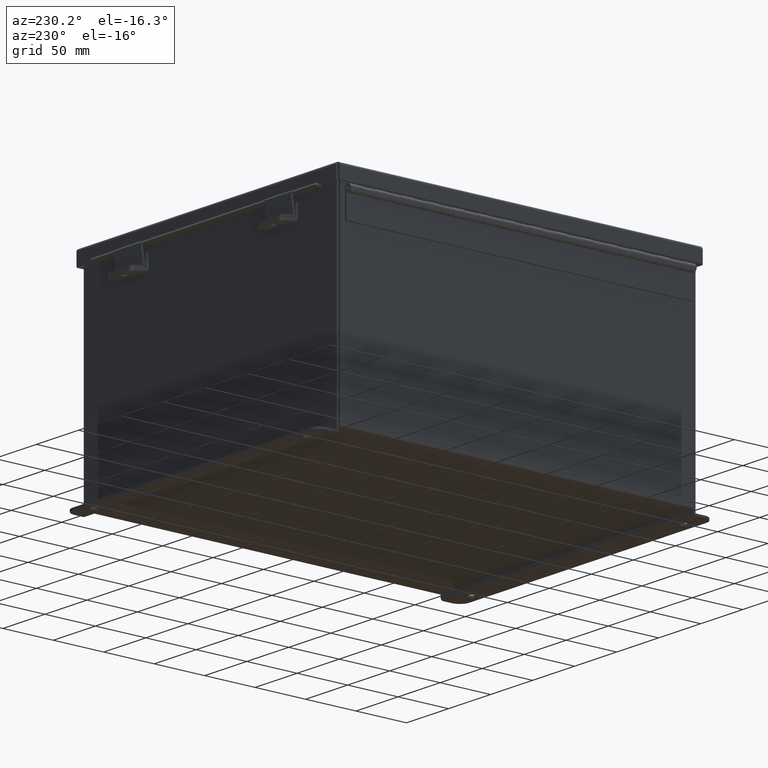
[diagram: clean part render]
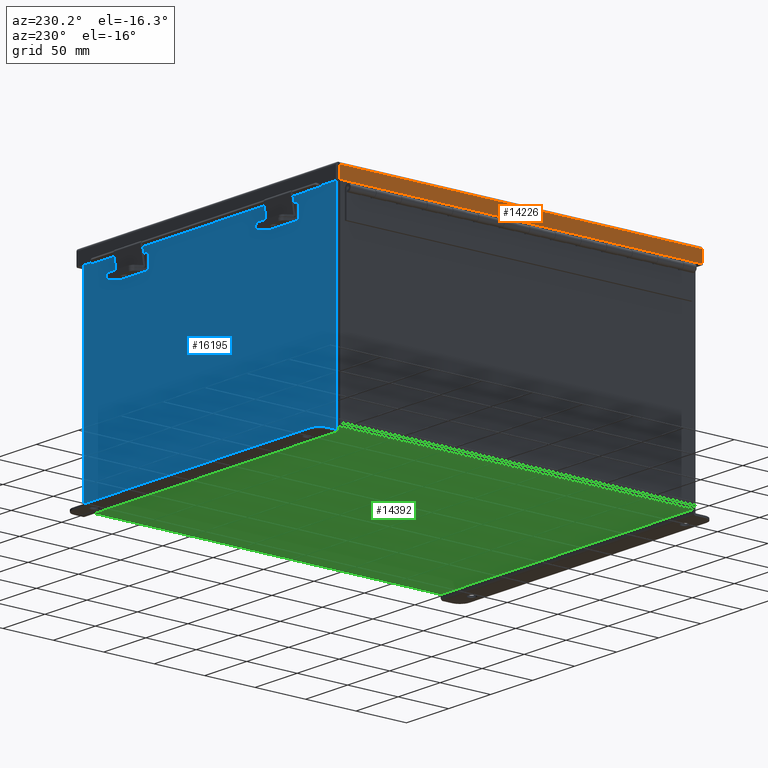
[diagram: same view with three faces highlighted in distinct colors, each labeled with its STEP entity id]
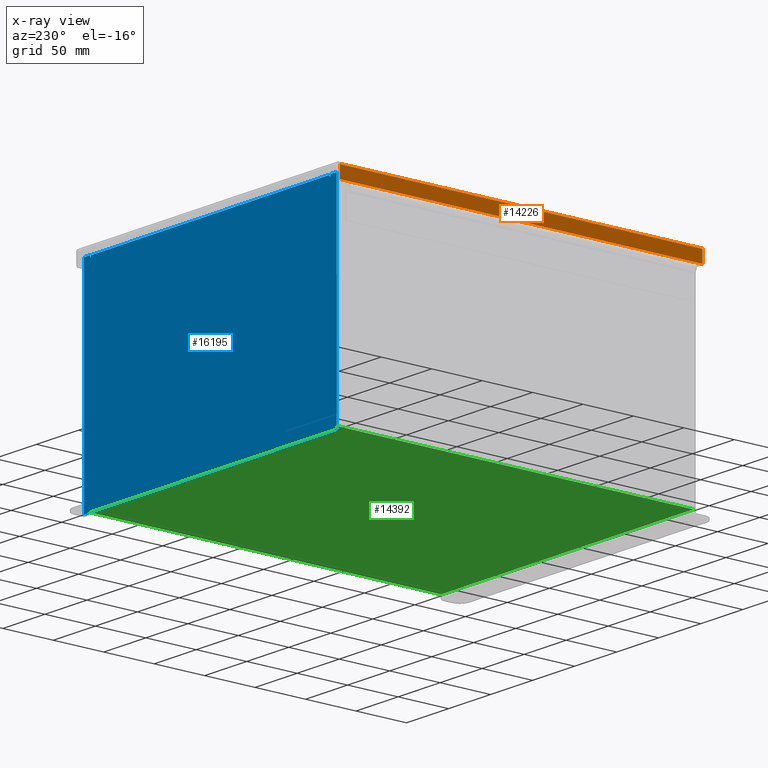
[diagram: x-ray of the same camera — body ghosted, the three highlighted faces saturated]
A machine part, auxiliary view with three faces highlighted in distinct colors.
The next image is the same camera in x-ray (body ghosted, the three faces saturated) — at least one of them is partly hidden behind the body in this view.
Their STEP definitions:

[orange] entity #14226 — the highlighted planar face has unit normal (1, -0, 0).
#831 = DIRECTION ( 'NONE',  ( -3.424136966969389700E-031, -1.000000000000000000, -7.634859021594447800E-017 ) ) ;
#2087 = CARTESIAN_POINT ( 'NONE',  ( 6.156250000000000000, 7.074478932188133800, 0.01300000000000086700 ) ) ;
#2298 = LINE ( 'NONE', #11026, #5741 ) ;
#2381 = VERTEX_POINT ( 'NONE', #10493 ) ;
#3418 = DIRECTION ( 'NONE',  ( -1.000000000000000000, 0.0000000000000000000, 4.484872552701437800E-015 ) ) ;
#3613 = ORIENTED_EDGE ( 'NONE', *, *, #9791, .T. ) ;
#3631 = EDGE_CURVE ( 'NONE', #6689, #2381, #6513, .T. ) ;
#3774 = CARTESIAN_POINT ( 'NONE',  ( 6.156250000000000000, 7.074478932188133800, -2.787081030857980700E-014 ) ) ;
#3841 = DIRECTION ( 'NONE',  ( 4.484872552701437800E-015, 0.0000000000000000000, 1.000000000000000000 ) ) ;
#4353 = CARTESIAN_POINT ( 'NONE',  ( 6.156250000000000000, -7.074478932188138300, 0.01299999999999974100 ) ) ;
#4538 = DIRECTION ( 'NONE',  ( 4.484872552701437800E-015, -0.0000000000000000000, 1.000000000000000000 ) ) ;
#5237 = CARTESIAN_POINT ( 'NONE',  ( 6.156250000000002700, -1.140647937826210200E-017, 0.4872999999999997300 ) ) ;
#5702 = VERTEX_POINT ( 'NONE', #7013 ) ;
#5741 = VECTOR ( 'NONE', #831, 39.37007874015748100 ) ;
#6513 = LINE ( 'NONE', #11922, #13709 ) ;
#6689 = VERTEX_POINT ( 'NONE', #4353 ) ;
#7013 = CARTESIAN_POINT ( 'NONE',  ( 6.156250000000002700, 7.074478932188133800, 0.4872999999999997300 ) ) ;
#7399 = VERTEX_POINT ( 'NONE', #2087 ) ;
#7754 = PLANE ( 'NONE',  #18872 ) ;
#7905 = ORIENTED_EDGE ( 'NONE', *, *, #15553, .F. ) ;
#8229 = EDGE_CURVE ( 'NONE', #7399, #5702, #12398, .T. ) ;
#8747 = ORIENTED_EDGE ( 'NONE', *, *, #8229, .T. ) ;
#9060 = ORIENTED_EDGE ( 'NONE', *, *, #3631, .F. ) ;
#9624 = VECTOR ( 'NONE', #15415, 39.37007874015748100 ) ;
#9791 = EDGE_CURVE ( 'NONE', #5702, #2381, #13492, .T. ) ;
#10493 = CARTESIAN_POINT ( 'NONE',  ( 6.156250000000002700, -7.074478932188137400, 0.4872999999999997300 ) ) ;
#11026 = CARTESIAN_POINT ( 'NONE',  ( 6.156250000000000000, -7.156250000000001800, 0.01299999999999978100 ) ) ;
#11922 = CARTESIAN_POINT ( 'NONE',  ( 6.156250000000000000, -7.074478932188137400, -3.350199796867981300E-016 ) ) ;
#12061 = CARTESIAN_POINT ( 'NONE',  ( 6.156250000000000000, -1.140647937826210200E-017, -2.787081030857980700E-014 ) ) ;
#12398 = LINE ( 'NONE', #3774, #15419 ) ;
#13492 = LINE ( 'NONE', #5237, #9624 ) ;
#13540 = DIRECTION ( 'NONE',  ( 4.484872552701437800E-015, 0.0000000000000000000, 1.000000000000000000 ) ) ;
#13709 = VECTOR ( 'NONE', #4538, 39.37007874015748100 ) ;
#14226 = ADVANCED_FACE ( 'NONE', ( #18721 ), #7754, .F. ) ;
#15415 = DIRECTION ( 'NONE',  ( 0.0000000000000000000, -1.000000000000000000, 0.0000000000000000000 ) ) ;
#15419 = VECTOR ( 'NONE', #3841, 39.37007874015748100 ) ;
#15553 = EDGE_CURVE ( 'NONE', #7399, #6689, #2298, .T. ) ;
#18721 = FACE_OUTER_BOUND ( 'NONE', #18807, .T. ) ;
#18807 = EDGE_LOOP ( 'NONE', ( #7905, #8747, #3613, #9060 ) ) ;
#18872 = AXIS2_PLACEMENT_3D ( 'NONE', #12061, #3418, #13540 ) ;

[blue] entity #16195 — the highlighted planar face has unit normal (0, -1, 0).
#46 = VERTEX_POINT ( 'NONE', #3001 ) ;
#125 = CARTESIAN_POINT ( 'NONE',  ( 5.619649999999914800, 0.0000000000000000000, -1.218404205174261500E-013 ) ) ;
#365 = ORIENTED_EDGE ( 'NONE', *, *, #11782, .F. ) ;
#561 = ORIENTED_EDGE ( 'NONE', *, *, #13495, .T. ) ;
#648 = VECTOR ( 'NONE', #2495, 39.37007874015748100 ) ;
#693 = VERTEX_POINT ( 'NONE', #11125 ) ;
#738 = CARTESIAN_POINT ( 'NONE',  ( -5.925300000000000000, -1.092739197465705300E-015, -4.099300000000000400 ) ) ;
#811 = ORIENTED_EDGE ( 'NONE', *, *, #14883, .F. ) ;
#848 = EDGE_CURVE ( 'NONE', #5216, #693, #15459, .T. ) ;
#944 = LINE ( 'NONE', #9217, #12095 ) ;
#970 = CARTESIAN_POINT ( 'NONE',  ( 5.925299999999999100, 0.0000000000000000000, 3.925299999999999600 ) ) ;
#1270 = ORIENTED_EDGE ( 'NONE', *, *, #4101, .F. ) ;
#2111 = LINE ( 'NONE', #11011, #16282 ) ;
#2129 = DIRECTION ( 'NONE',  ( 1.000000000000000000, 0.0000000000000000000, 4.610480471308225700E-017 ) ) ;
#2335 = DIRECTION ( 'NONE',  ( 0.0000000000000000000, 0.0000000000000000000, -1.000000000000000000 ) ) ;
#2495 = DIRECTION ( 'NONE',  ( 1.000000000000000000, 0.0000000000000000000, 4.610480471308225700E-017 ) ) ;
#2780 = VECTOR ( 'NONE', #17702, 39.37007874015748100 ) ;
#2926 = CARTESIAN_POINT ( 'NONE',  ( 5.619649999999998300, 0.0000000000000000000, 3.874949999999998300 ) ) ;
#3001 = CARTESIAN_POINT ( 'NONE',  ( 5.619650000000000000, 0.0000000000000000000, 3.925299999999999600 ) ) ;
#3216 = CARTESIAN_POINT ( 'NONE',  ( -5.582300000000000000, 0.0000000000000000000, 0.0000000000000000000 ) ) ;
#3630 = EDGE_LOOP ( 'NONE', ( #365, #811, #5744, #7162, #11311, #1270, #13494, #7910, #13295, #4691, #561, #10309 ) ) ;
#3639 = CARTESIAN_POINT ( 'NONE',  ( -5.600975000000000000, 0.0000000000000000000, 3.874949999999998300 ) ) ;
#3835 = VECTOR ( 'NONE', #12362, 39.37007874015748100 ) ;
#3971 = VECTOR ( 'NONE', #12495, 39.37007874015748100 ) ;
#4101 = EDGE_CURVE ( 'NONE', #17610, #8145, #10760, .T. ) ;
#4475 = EDGE_CURVE ( 'NONE', #5850, #15093, #11648, .T. ) ;
#4522 = AXIS2_PLACEMENT_3D ( 'NONE', #17060, #18550, #9719 ) ;
#4691 = ORIENTED_EDGE ( 'NONE', *, *, #4475, .F. ) ;
#4811 = CARTESIAN_POINT ( 'NONE',  ( -5.582300000000000000, 2.185478394931410600E-015, 3.912299999999998800 ) ) ;
#5028 = VERTEX_POINT ( 'NONE', #16252 ) ;
#5106 = DIRECTION ( 'NONE',  ( 0.0000000000000000000, 0.0000000000000000000, -1.000000000000000000 ) ) ;
#5216 = VERTEX_POINT ( 'NONE', #4811 ) ;
#5526 = CIRCLE ( 'NONE', #14808, 0.01867500000000003900 ) ;
#5744 = ORIENTED_EDGE ( 'NONE', *, *, #848, .F. ) ;
#5850 = VERTEX_POINT ( 'NONE', #738 ) ;
#5951 = FACE_OUTER_BOUND ( 'NONE', #3630, .T. ) ;
#6108 = CARTESIAN_POINT ( 'NONE',  ( -5.925300000000001800, 0.0000000000000000000, 3.925299999999999600 ) ) ;
#6256 = DIRECTION ( 'NONE',  ( 0.0000000000000000000, 0.0000000000000000000, 1.000000000000000000 ) ) ;
#6508 = VECTOR ( 'NONE', #2129, 39.37007874015748100 ) ;
#6526 = CARTESIAN_POINT ( 'NONE',  ( -5.925300000000001800, 0.0000000000000000000, 3.925299999999999600 ) ) ;
#6900 = PLANE ( 'NONE',  #4522 ) ;
#7162 = ORIENTED_EDGE ( 'NONE', *, *, #17700, .T. ) ;
#7830 = DIRECTION ( 'NONE',  ( 0.0000000000000000000, 0.0000000000000000000, 1.000000000000000000 ) ) ;
#7910 = ORIENTED_EDGE ( 'NONE', *, *, #13777, .T. ) ;
#8145 = VERTEX_POINT ( 'NONE', #15363 ) ;
#9028 = VERTEX_POINT ( 'NONE', #13574 ) ;
#9105 = CARTESIAN_POINT ( 'NONE',  ( 5.582299999999999200, 0.0000000000000000000, 3.912299999999998800 ) ) ;
#9217 = CARTESIAN_POINT ( 'NONE',  ( -5.619650000000000000, 0.0000000000000000000, 0.0000000000000000000 ) ) ;
#9219 = DIRECTION ( 'NONE',  ( 1.000000000000000000, 0.0000000000000000000, 0.0000000000000000000 ) ) ;
#9719 = DIRECTION ( 'NONE',  ( 0.0000000000000000000, -0.0000000000000000000, -1.000000000000000000 ) ) ;
#9900 = VERTEX_POINT ( 'NONE', #970 ) ;
#9983 = LINE ( 'NONE', #6108, #2780 ) ;
#10083 = DIRECTION ( 'NONE',  ( -0.0000000000000000000, 1.000000000000000000, -0.0000000000000000000 ) ) ;
#10277 = LINE ( 'NONE', #6526, #6508 ) ;
#10309 = ORIENTED_EDGE ( 'NONE', *, *, #10676, .T. ) ;
#10522 = VERTEX_POINT ( 'NONE', #9105 ) ;
#10676 = EDGE_CURVE ( 'NONE', #5028, #17579, #10277, .T. ) ;
#10718 = CARTESIAN_POINT ( 'NONE',  ( 5.600974999999998300, 0.0000000000000000000, 3.874949999999998300 ) ) ;
#10760 = CIRCLE ( 'NONE', #15128, 0.01867500000000003900 ) ;
#10781 = EDGE_CURVE ( 'NONE', #9900, #15093, #2111, .T. ) ;
#11011 = CARTESIAN_POINT ( 'NONE',  ( 5.925299999999999100, 0.0000000000000000000, 3.925299999999999600 ) ) ;
#11125 = CARTESIAN_POINT ( 'NONE',  ( -5.582300000000000000, 0.0000000000000000000, 3.874949999999998300 ) ) ;
#11311 = ORIENTED_EDGE ( 'NONE', *, *, #15953, .F. ) ;
#11388 = CARTESIAN_POINT ( 'NONE',  ( 5.925299999999999100, 0.0000000000000000000, -4.099300000000000400 ) ) ;
#11648 = LINE ( 'NONE', #18846, #3971 ) ;
#11760 = DIRECTION ( 'NONE',  ( -2.170286390199955400E-014, 0.0000000000000000000, -1.000000000000000000 ) ) ;
#11782 = EDGE_CURVE ( 'NONE', #9028, #17579, #944, .T. ) ;
#11791 = LINE ( 'NONE', #125, #12263 ) ;
#12095 = VECTOR ( 'NONE', #7830, 39.37007874015748100 ) ;
#12263 = VECTOR ( 'NONE', #11760, 39.37007874015748100 ) ;
#12362 = DIRECTION ( 'NONE',  ( 0.0000000000000000000, 0.0000000000000000000, -1.000000000000000000 ) ) ;
#12495 = DIRECTION ( 'NONE',  ( 1.000000000000000000, 8.208677865577646300E-017, -0.0000000000000000000 ) ) ;
#13295 = ORIENTED_EDGE ( 'NONE', *, *, #10781, .T. ) ;
#13420 = CARTESIAN_POINT ( 'NONE',  ( 5.582299999999999200, 0.0000000000000000000, 0.0000000000000000000 ) ) ;
#13494 = ORIENTED_EDGE ( 'NONE', *, *, #15842, .F. ) ;
#13495 = EDGE_CURVE ( 'NONE', #5850, #5028, #9983, .T. ) ;
#13574 = CARTESIAN_POINT ( 'NONE',  ( -5.619650000000000000, 0.0000000000000000000, 3.874949999999998300 ) ) ;
#13771 = DIRECTION ( 'NONE',  ( -0.0000000000000000000, 1.000000000000000000, -0.0000000000000000000 ) ) ;
#13777 = EDGE_CURVE ( 'NONE', #46, #9900, #17121, .T. ) ;
#14113 = CARTESIAN_POINT ( 'NONE',  ( -5.925300000000001800, 0.0000000000000000000, 3.925299999999999600 ) ) ;
#14621 = DIRECTION ( 'NONE',  ( 0.0000000000000000000, 0.0000000000000000000, -1.000000000000000000 ) ) ;
#14808 = AXIS2_PLACEMENT_3D ( 'NONE', #3639, #13771, #5106 ) ;
#14883 = EDGE_CURVE ( 'NONE', #693, #9028, #5526, .T. ) ;
#15093 = VERTEX_POINT ( 'NONE', #11388 ) ;
#15128 = AXIS2_PLACEMENT_3D ( 'NONE', #10718, #10083, #14621 ) ;
#15363 = CARTESIAN_POINT ( 'NONE',  ( 5.582299999999999200, 0.0000000000000000000, 3.874949999999998300 ) ) ;
#15459 = LINE ( 'NONE', #3216, #3835 ) ;
#15842 = EDGE_CURVE ( 'NONE', #46, #17610, #11791, .T. ) ;
#15904 = CARTESIAN_POINT ( 'NONE',  ( -5.619650000000000000, 0.0000000000000000000, 3.925299999999999600 ) ) ;
#15953 = EDGE_CURVE ( 'NONE', #8145, #10522, #17839, .T. ) ;
#16195 = ADVANCED_FACE ( 'NONE', ( #5951 ), #6900, .F. ) ;
#16252 = CARTESIAN_POINT ( 'NONE',  ( -5.925300000000001800, 0.0000000000000000000, 3.925299999999999600 ) ) ;
#16282 = VECTOR ( 'NONE', #2335, 39.37007874015748100 ) ;
#16547 = CARTESIAN_POINT ( 'NONE',  ( -5.582300000000000900, 2.185478394931410600E-015, 3.912299999999998800 ) ) ;
#17060 = CARTESIAN_POINT ( 'NONE',  ( 0.0000000000000000000, 0.0000000000000000000, 0.0000000000000000000 ) ) ;
#17121 = LINE ( 'NONE', #14113, #648 ) ;
#17579 = VERTEX_POINT ( 'NONE', #15904 ) ;
#17610 = VERTEX_POINT ( 'NONE', #2926 ) ;
#17700 = EDGE_CURVE ( 'NONE', #5216, #10522, #18224, .T. ) ;
#17702 = DIRECTION ( 'NONE',  ( -0.0000000000000000000, -0.0000000000000000000, 1.000000000000000000 ) ) ;
#17760 = VECTOR ( 'NONE', #9219, 39.37007874015748100 ) ;
#17839 = LINE ( 'NONE', #13420, #18286 ) ;
#18224 = LINE ( 'NONE', #16547, #17760 ) ;
#18286 = VECTOR ( 'NONE', #6256, 39.37007874015748100 ) ;
#18550 = DIRECTION ( 'NONE',  ( 0.0000000000000000000, -1.000000000000000000, 0.0000000000000000000 ) ) ;
#18846 = CARTESIAN_POINT ( 'NONE',  ( -5.925300000000001800, -1.092739197465705300E-015, -4.099300000000000400 ) ) ;

[green] entity #14392 — the highlighted planar face has unit normal (0, 0, -1).
#827 = ORIENTED_EDGE ( 'NONE', *, *, #11094, .T. ) ;
#1310 = VECTOR ( 'NONE', #16848, 39.37007874015748100 ) ;
#1473 = VERTEX_POINT ( 'NONE', #17463 ) ;
#2305 = PLANE ( 'NONE',  #17808 ) ;
#3453 = CARTESIAN_POINT ( 'NONE',  ( -5.912300000000000100, 6.925299999999998200, -0.07470000000000000300 ) ) ;
#3782 = CARTESIAN_POINT ( 'NONE',  ( 0.0000000000000000000, 0.0000000000000000000, -0.07470000000000000300 ) ) ;
#3834 = CARTESIAN_POINT ( 'NONE',  ( -6.000000000000000900, -6.925300000000000900, -0.07470000000000000300 ) ) ;
#3907 = EDGE_CURVE ( 'NONE', #1473, #5011, #6307, .T. ) ;
#4459 = CARTESIAN_POINT ( 'NONE',  ( 5.912300000000000100, 6.925299999999996500, -0.07469999999999994700 ) ) ;
#4795 = ORIENTED_EDGE ( 'NONE', *, *, #3907, .F. ) ;
#5011 = VERTEX_POINT ( 'NONE', #9701 ) ;
#5234 = FACE_OUTER_BOUND ( 'NONE', #12835, .T. ) ;
#5248 = DIRECTION ( 'NONE',  ( 0.0000000000000000000, 0.0000000000000000000, -1.000000000000000000 ) ) ;
#5549 = DIRECTION ( 'NONE',  ( 1.000000000000000000, 0.0000000000000000000, 0.0000000000000000000 ) ) ;
#6307 = LINE ( 'NONE', #3834, #9631 ) ;
#6382 = DIRECTION ( 'NONE',  ( -1.000000000000000000, -0.0000000000000000000, -0.0000000000000000000 ) ) ;
#6595 = VECTOR ( 'NONE', #6382, 39.37007874015748100 ) ;
#6858 = VERTEX_POINT ( 'NONE', #4459 ) ;
#8109 = CARTESIAN_POINT ( 'NONE',  ( -5.912300000000000100, -6.925300000000000900, -0.07469999999999994700 ) ) ;
#8272 = VECTOR ( 'NONE', #10361, 39.37007874015748100 ) ;
#8444 = ORIENTED_EDGE ( 'NONE', *, *, #14384, .T. ) ;
#8918 = CARTESIAN_POINT ( 'NONE',  ( 5.912300000000000100, 6.925299999999998200, -0.07469999999999994700 ) ) ;
#9048 = LINE ( 'NONE', #8109, #1310 ) ;
#9631 = VECTOR ( 'NONE', #5549, 39.37007874015748100 ) ;
#9701 = CARTESIAN_POINT ( 'NONE',  ( 5.912300000000000100, -6.925300000000000900, -0.07470000000000000300 ) ) ;
#10361 = DIRECTION ( 'NONE',  ( -0.0000000000000000000, -1.000000000000000000, -0.0000000000000000000 ) ) ;
#10363 = LINE ( 'NONE', #12071, #6595 ) ;
#11094 = EDGE_CURVE ( 'NONE', #6858, #5011, #16036, .T. ) ;
#12071 = CARTESIAN_POINT ( 'NONE',  ( -6.000000000000000900, 6.925299999999998200, -0.07470000000000000300 ) ) ;
#12835 = EDGE_LOOP ( 'NONE', ( #12883, #827, #4795, #8444 ) ) ;
#12883 = ORIENTED_EDGE ( 'NONE', *, *, #17698, .F. ) ;
#14384 = EDGE_CURVE ( 'NONE', #1473, #14835, #9048, .T. ) ;
#14392 = ADVANCED_FACE ( 'NONE', ( #5234 ), #2305, .T. ) ;
#14835 = VERTEX_POINT ( 'NONE', #3453 ) ;
#15434 = DIRECTION ( 'NONE',  ( -1.000000000000000000, 0.0000000000000000000, -0.0000000000000000000 ) ) ;
#16036 = LINE ( 'NONE', #8918, #8272 ) ;
#16848 = DIRECTION ( 'NONE',  ( -0.0000000000000000000, 1.000000000000000000, -0.0000000000000000000 ) ) ;
#17463 = CARTESIAN_POINT ( 'NONE',  ( -5.912300000000000100, -6.925299999999999100, -0.07469999999999994700 ) ) ;
#17698 = EDGE_CURVE ( 'NONE', #6858, #14835, #10363, .T. ) ;
#17808 = AXIS2_PLACEMENT_3D ( 'NONE', #3782, #5248, #15434 ) ;